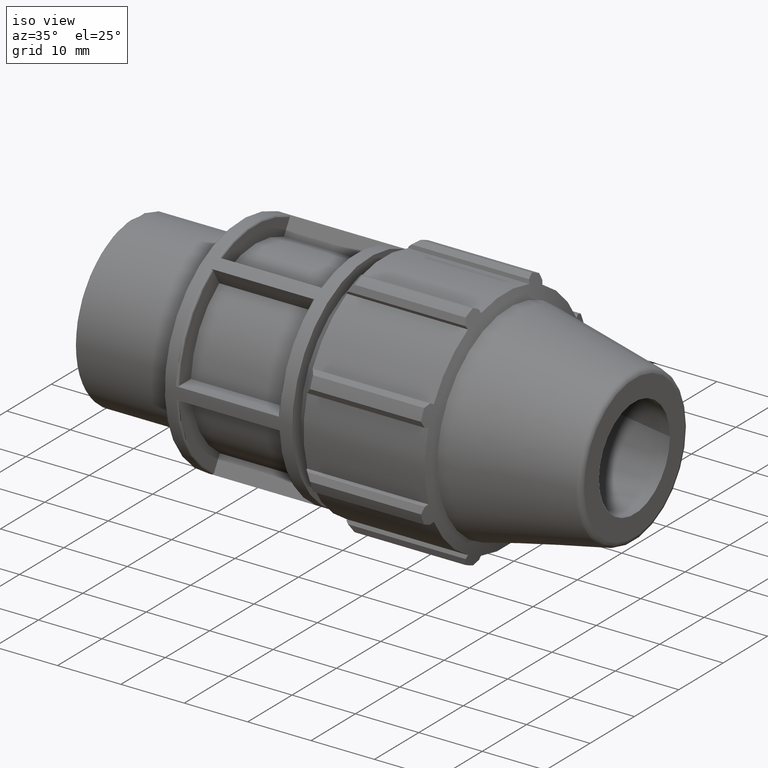
[diagram: clean part render]
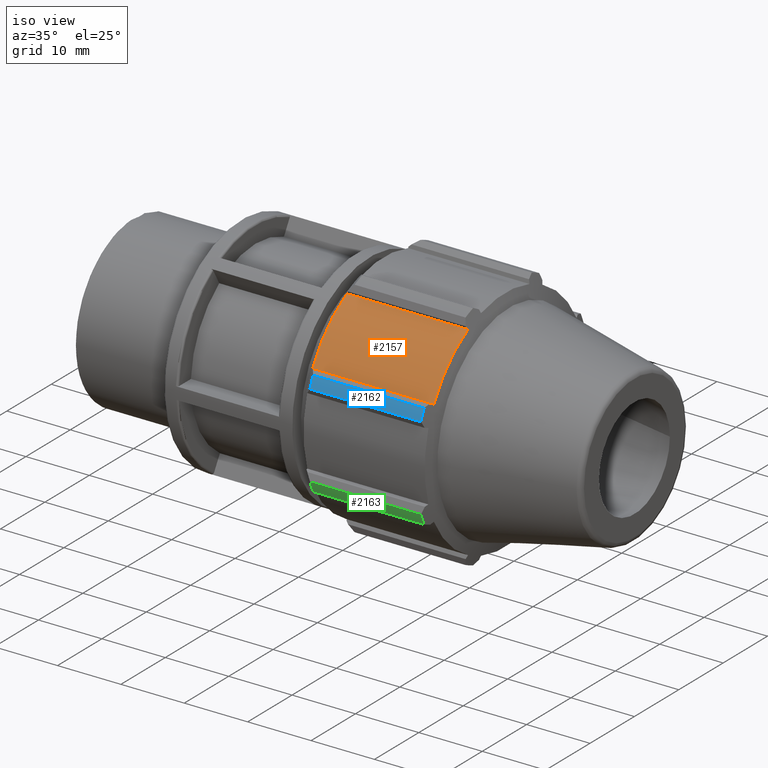
[diagram: same view with three faces highlighted in distinct colors, each labeled with its STEP entity id]
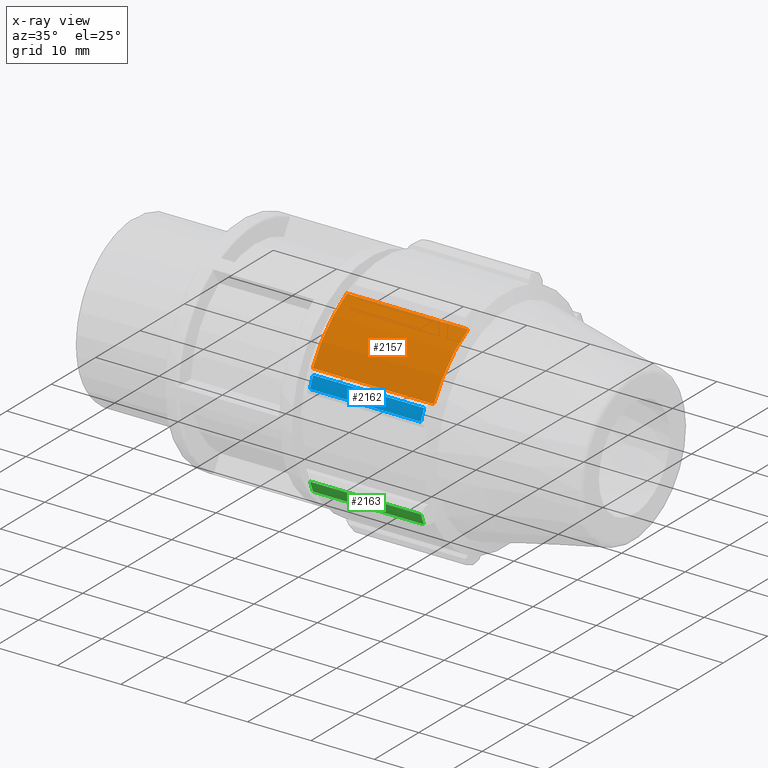
[diagram: x-ray of the same camera — body ghosted, the three highlighted faces saturated]
A machine part, iso view with three faces highlighted in distinct colors.
The next image is the same camera in x-ray (body ghosted, the three faces saturated) — at least one of them is partly hidden behind the body in this view.
Their STEP definitions:

[orange] entity #2157 — the highlighted cylindrical surface (partial cylindrical patch) has radius 18.135 mm, axis along (1, 0, 0).
#130=LINE('',#3519,#274);
#193=LINE('',#3797,#337);
#274=VECTOR('',#2685,19.1206279792513);
#337=VECTOR('',#2872,19.1206279792513);
#384=CYLINDRICAL_SURFACE('',#2369,18.135);
#587=FACE_OUTER_BOUND('',#725,.T.);
#725=EDGE_LOOP('',(#1870,#1871,#1872,#1873));
#803=CIRCLE('',#2280,18.135);
#822=CIRCLE('',#2328,18.135);
#951=VERTEX_POINT('',#3481);
#952=VERTEX_POINT('',#3483);
#962=VERTEX_POINT('',#3517);
#1021=VERTEX_POINT('',#3731);
#1188=EDGE_CURVE('',#951,#952,#803,.T.);
#1203=EDGE_CURVE('',#951,#962,#130,.T.);
#1287=EDGE_CURVE('',#1021,#962,#822,.T.);
#1320=EDGE_CURVE('',#952,#1021,#193,.T.);
#1870=ORIENTED_EDGE('',*,*,#1287,.F.);
#1871=ORIENTED_EDGE('',*,*,#1320,.F.);
#1872=ORIENTED_EDGE('',*,*,#1188,.F.);
#1873=ORIENTED_EDGE('',*,*,#1203,.T.);
#2157=ADVANCED_FACE('',(#587),#384,.T.);
#2280=AXIS2_PLACEMENT_3D('',#3484,#2662,#2663);
#2328=AXIS2_PLACEMENT_3D('',#3733,#2812,#2813);
#2369=AXIS2_PLACEMENT_3D('',#3830,#2921,#2922);
#2662=DIRECTION('center_axis',(-1.,0.,0.));
#2663=DIRECTION('ref_axis',(0.,0.887010833178222,-0.461748613235034));
#2685=DIRECTION('',(1.,0.,0.));
#2812=DIRECTION('center_axis',(1.,0.,0.));
#2813=DIRECTION('ref_axis',(0.,0.887010833178222,-0.461748613235034));
#2872=DIRECTION('',(1.,0.,0.));
#2921=DIRECTION('center_axis',(1.,0.,0.));
#2922=DIRECTION('ref_axis',(0.,0.887010833178222,-0.461748613235034));
#3481=CARTESIAN_POINT('',(39.5,-16.0859414596871,8.37381110101735));
#3483=CARTESIAN_POINT('',(39.5,-8.37381110101734,16.0859414596871));
#3484=CARTESIAN_POINT('Origin',(39.5,0.,0.));
#3517=CARTESIAN_POINT('',(58.6206279792513,-16.0859414596871,8.37381110101734));
#3519=CARTESIAN_POINT('',(39.5,-16.0859414596871,8.37381110101735));
#3731=CARTESIAN_POINT('',(58.6206279792513,-8.37381110101734,16.0859414596871));
#3733=CARTESIAN_POINT('Origin',(58.6206279792513,0.,0.));
#3797=CARTESIAN_POINT('',(39.5,-8.37381110101734,16.0859414596871));
#3830=CARTESIAN_POINT('Origin',(39.5,0.,0.));

[blue] entity #2162 — the highlighted cylindrical surface (partial cylindrical patch) has radius 19.5 mm, axis along (1, 0, 0).
#131=LINE('',#3522,#275);
#189=LINE('',#3790,#333);
#275=VECTOR('',#2688,17.5071125938934);
#333=VECTOR('',#2862,17.5071125938934);
#389=CYLINDRICAL_SURFACE('',#2374,19.5);
#592=FACE_OUTER_BOUND('',#730,.T.);
#730=EDGE_LOOP('',(#1890,#1891,#1892,#1893));
#805=CIRCLE('',#2285,19.5);
#823=CIRCLE('',#2329,19.5);
#958=VERTEX_POINT('',#3502);
#959=VERTEX_POINT('',#3506);
#963=VERTEX_POINT('',#3521);
#1022=VERTEX_POINT('',#3734);
#1197=EDGE_CURVE('',#958,#959,#805,.T.);
#1204=EDGE_CURVE('',#959,#963,#131,.T.);
#1288=EDGE_CURVE('',#963,#1022,#823,.T.);
#1316=EDGE_CURVE('',#1022,#958,#189,.T.);
#1890=ORIENTED_EDGE('',*,*,#1197,.F.);
#1891=ORIENTED_EDGE('',*,*,#1316,.F.);
#1892=ORIENTED_EDGE('',*,*,#1288,.F.);
#1893=ORIENTED_EDGE('',*,*,#1204,.F.);
#2162=ADVANCED_FACE('',(#592),#389,.T.);
#2285=AXIS2_PLACEMENT_3D('',#3507,#2677,#2678);
#2329=AXIS2_PLACEMENT_3D('',#3735,#2814,#2815);
#2374=AXIS2_PLACEMENT_3D('',#3835,#2931,#2932);
#2677=DIRECTION('center_axis',(-1.,0.,0.));
#2678=DIRECTION('ref_axis',(0.,-1.,0.));
#2688=DIRECTION('',(1.,0.,0.));
#2814=DIRECTION('center_axis',(1.,0.,0.));
#2815=DIRECTION('ref_axis',(0.,0.,-1.));
#2862=DIRECTION('',(-1.,0.,0.));
#2931=DIRECTION('center_axis',(1.,0.,0.));
#2932=DIRECTION('ref_axis',(0.,1.,0.));
#3502=CARTESIAN_POINT('',(40.67,-18.3480989463421,6.6028225067194));
#3506=CARTESIAN_POINT('',(40.67,-17.6429657563127,8.3051646173678));
#3507=CARTESIAN_POINT('Origin',(40.67,0.,0.));
#3521=CARTESIAN_POINT('',(58.1771125938934,-17.6429657563127,8.3051646173678));
#3522=CARTESIAN_POINT('',(48.8385562969467,-17.6429657563127,8.3051646173678));
#3734=CARTESIAN_POINT('',(58.1771125938934,-18.3480989463421,6.6028225067194));
#3735=CARTESIAN_POINT('Origin',(58.1771125938934,0.,0.));
#3790=CARTESIAN_POINT('',(48.8385562969467,-18.3480989463421,6.6028225067194));
#3835=CARTESIAN_POINT('Origin',(48.8385562969467,0.,0.));

[green] entity #2163 — the highlighted cylindrical surface (partial cylindrical patch) has radius 19.5 mm, axis along (1, 0, 0).
#137=LINE('',#3548,#281);
#186=LINE('',#3785,#330);
#281=VECTOR('',#2702,17.5071125938934);
#330=VECTOR('',#2855,17.5071125938934);
#390=CYLINDRICAL_SURFACE('',#2375,19.5);
#593=FACE_OUTER_BOUND('',#731,.T.);
#731=EDGE_LOOP('',(#1894,#1895,#1896,#1897));
#806=CIRCLE('',#2289,19.5);
#825=CIRCLE('',#2331,19.5);
#965=VERTEX_POINT('',#3528);
#966=VERTEX_POINT('',#3532);
#970=VERTEX_POINT('',#3547);
#1025=VERTEX_POINT('',#3743);
#1207=EDGE_CURVE('',#965,#966,#806,.T.);
#1214=EDGE_CURVE('',#966,#970,#137,.T.);
#1292=EDGE_CURVE('',#970,#1025,#825,.T.);
#1313=EDGE_CURVE('',#1025,#965,#186,.T.);
#1894=ORIENTED_EDGE('',*,*,#1207,.F.);
#1895=ORIENTED_EDGE('',*,*,#1313,.F.);
#1896=ORIENTED_EDGE('',*,*,#1292,.F.);
#1897=ORIENTED_EDGE('',*,*,#1214,.F.);
#2163=ADVANCED_FACE('',(#593),#390,.T.);
#2289=AXIS2_PLACEMENT_3D('',#3533,#2691,#2692);
#2331=AXIS2_PLACEMENT_3D('',#3744,#2819,#2820);
#2375=AXIS2_PLACEMENT_3D('',#3836,#2933,#2934);
#2691=DIRECTION('center_axis',(-1.,0.,0.));
#2692=DIRECTION('ref_axis',(0.,-1.,0.));
#2702=DIRECTION('',(1.,0.,0.));
#2819=DIRECTION('center_axis',(1.,0.,0.));
#2820=DIRECTION('ref_axis',(0.,0.,-1.));
#2855=DIRECTION('',(-1.,0.,0.));
#2933=DIRECTION('center_axis',(1.,0.,0.));
#2934=DIRECTION('ref_axis',(0.,1.,0.));
#3528=CARTESIAN_POINT('',(40.67,-17.6429657563127,-8.3051646173678));
#3532=CARTESIAN_POINT('',(40.67,-18.3480989463421,-6.6028225067194));
#3533=CARTESIAN_POINT('Origin',(40.67,0.,0.));
#3547=CARTESIAN_POINT('',(58.1771125938934,-18.3480989463421,-6.6028225067194));
#3548=CARTESIAN_POINT('',(48.8385562969467,-18.3480989463421,-6.6028225067194));
#3743=CARTESIAN_POINT('',(58.1771125938934,-17.6429657563127,-8.3051646173678));
#3744=CARTESIAN_POINT('Origin',(58.1771125938934,0.,0.));
#3785=CARTESIAN_POINT('',(48.8385562969467,-17.6429657563127,-8.3051646173678));
#3836=CARTESIAN_POINT('Origin',(48.8385562969467,0.,0.));